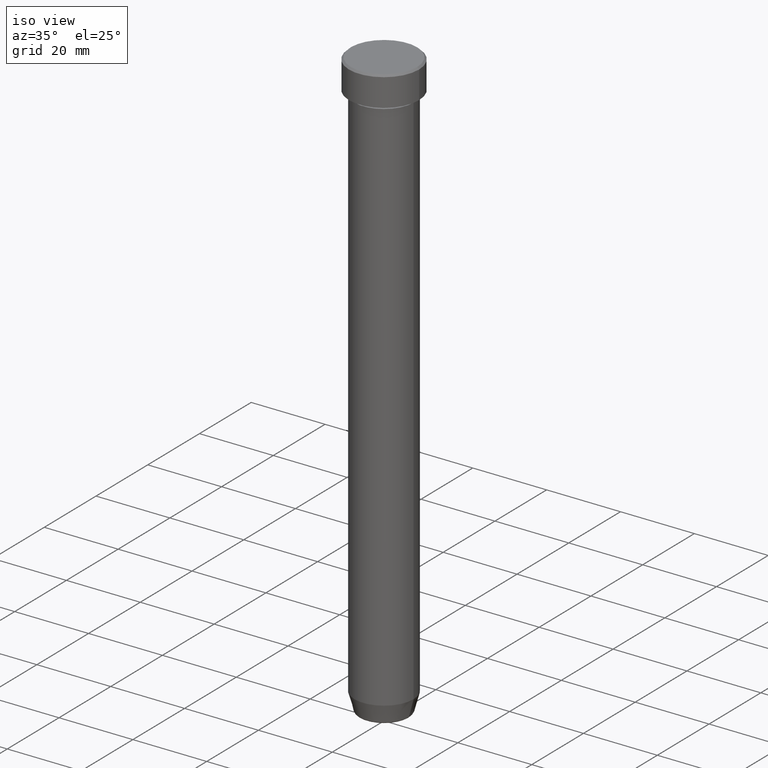
[diagram: clean part render]
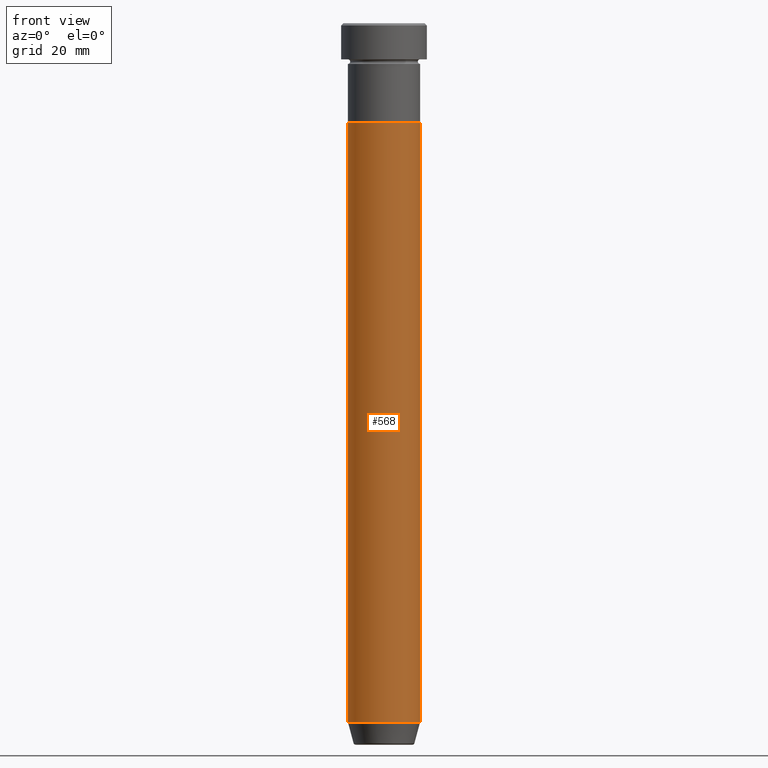
[diagram: tour spotlight — one face highlighted and labeled with its STEP entity id]
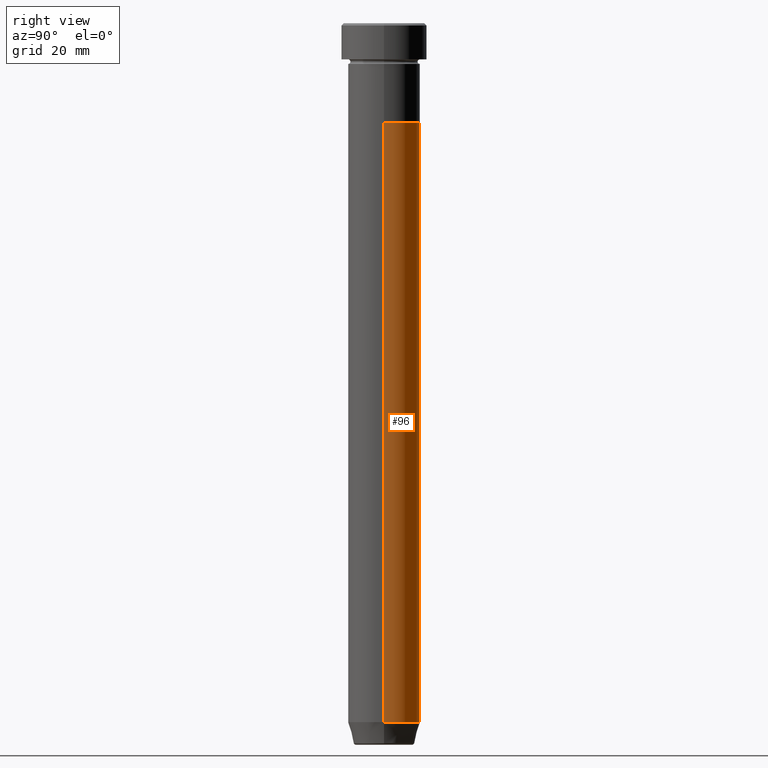
[diagram: tour spotlight — one face highlighted and labeled with its STEP entity id]
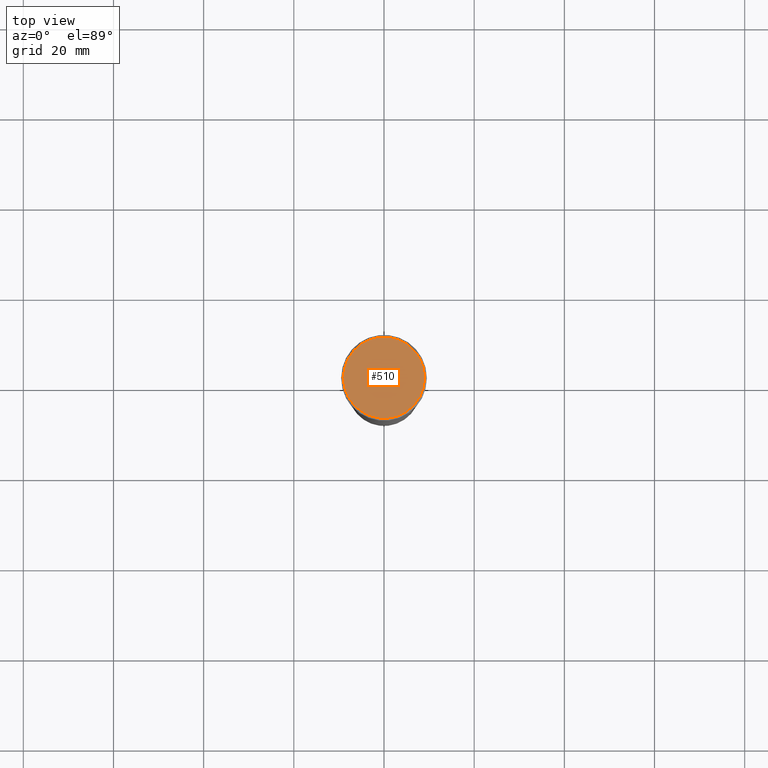
[diagram: tour spotlight — one face highlighted and labeled with its STEP entity id]
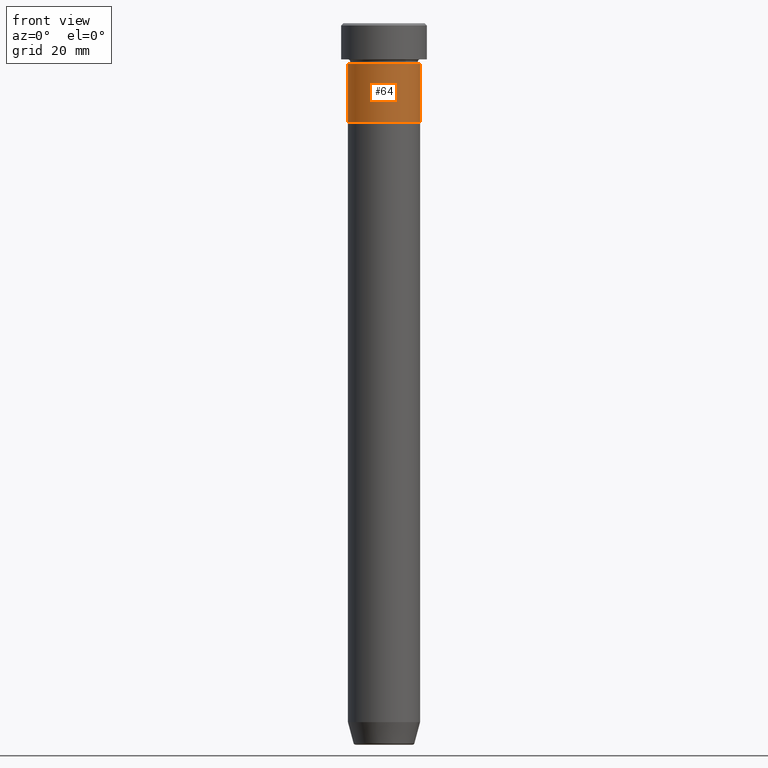
[diagram: tour spotlight — one face highlighted and labeled with its STEP entity id]
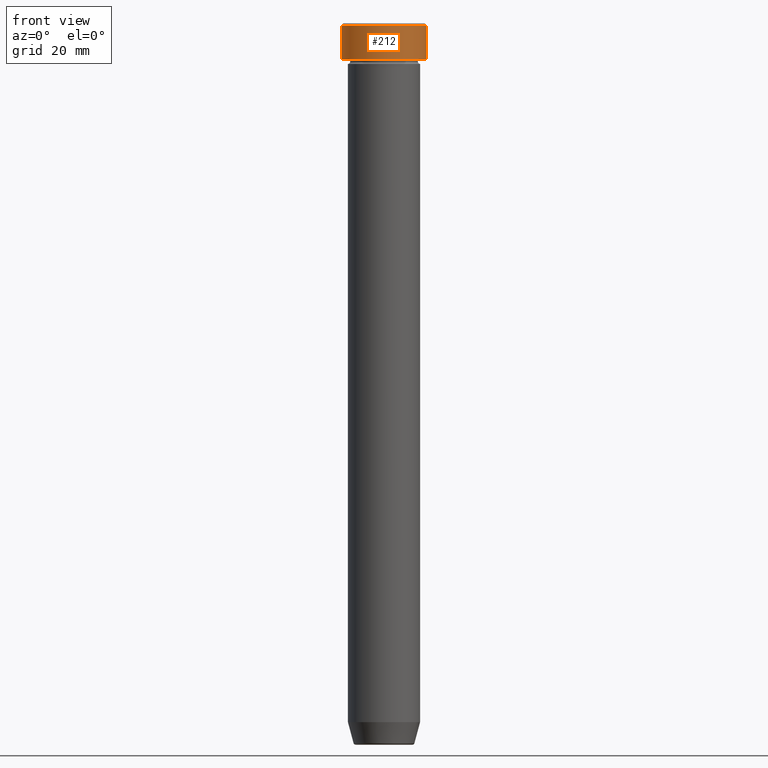
[diagram: tour spotlight — one face highlighted and labeled with its STEP entity id]
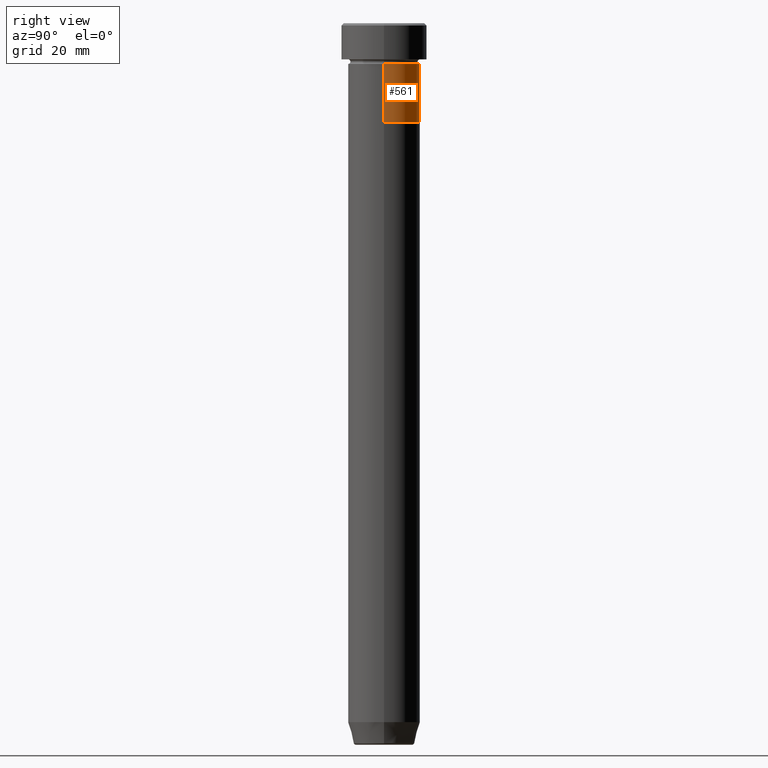
[diagram: tour spotlight — one face highlighted and labeled with its STEP entity id]
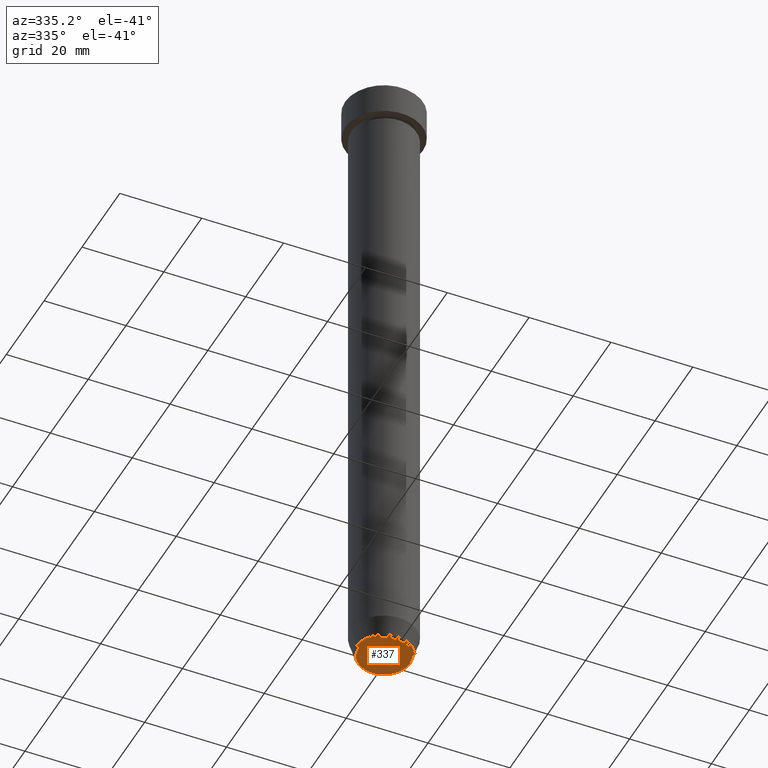
[diagram: tour spotlight — one face highlighted and labeled with its STEP entity id]
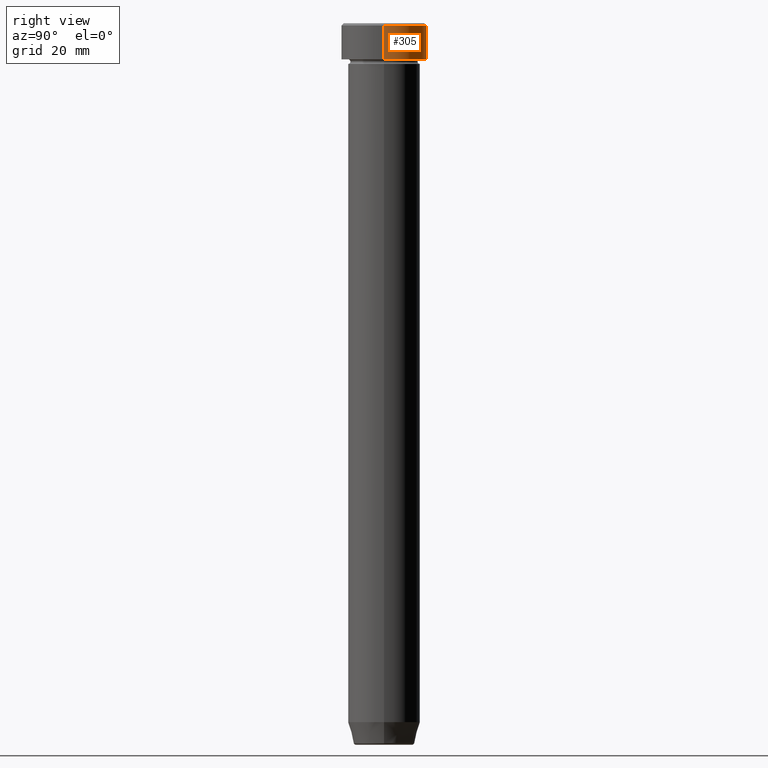
[diagram: tour spotlight — one face highlighted and labeled with its STEP entity id]
A machine part: a face-by-face anatomy tour. The part has 21 B-rep faces; the first image is the clean iso view, then the 8 largest visible faces are spotlighted one at a time (largest first), each with its STEP entity span.

Face 1 — front view, entity #568. In plain terms, the highlighted cylindrical surface (edge-blend (fillet) strip) has radius 8 mm, axis along (-0, -0, 1).
Definition (entity closure, byte-faithful):
#5 = CIRCLE ( 'NONE', #16, 8.000000000000000000 ) ;
#6 = CARTESIAN_POINT ( 'NONE',  ( 8.000000000000000000, 0.000000000000000000, -154.9999999999999716 ) ) ;
#16 = AXIS2_PLACEMENT_3D ( 'NONE', #333, #470, #521 ) ;
#20 = EDGE_LOOP ( 'NONE', ( #427, #463, #328, #460 ) ) ;
#22 = EDGE_CURVE ( 'NONE', #556, #249, #5, .T. ) ;
#30 = CARTESIAN_POINT ( 'NONE',  ( -8.000000000000000000, 9.797174393178825657E-16, -22.00000000000000000 ) ) ;
#39 = LINE ( 'NONE', #418, #196 ) ;
#47 = EDGE_CURVE ( 'NONE', #136, #269, #415, .T. ) ;
#54 = AXIS2_PLACEMENT_3D ( 'NONE', #262, #225, #343 ) ;
#73 = CARTESIAN_POINT ( 'NONE',  ( -8.000000000000000000, 9.797174393178825657E-16, 0.000000000000000000 ) ) ;
#89 = VECTOR ( 'NONE', #252, 1000.000000000000000 ) ;
#105 = CARTESIAN_POINT ( 'NONE',  ( -8.000000000000000000, 9.797174393178825657E-16, -154.9999999999999716 ) ) ;
#136 = VERTEX_POINT ( 'NONE', #30 ) ;
#196 = VECTOR ( 'NONE', #218, 1000.000000000000000 ) ;
#218 = DIRECTION ( 'NONE',  ( -0.000000000000000000, -0.000000000000000000, 1.000000000000000000 ) ) ;
#219 = EDGE_CURVE ( 'NONE', #556, #136, #485, .T. ) ;
#225 = DIRECTION ( 'NONE',  ( -0.000000000000000000, -0.000000000000000000, 1.000000000000000000 ) ) ;
#249 = VERTEX_POINT ( 'NONE', #6 ) ;
#252 = DIRECTION ( 'NONE',  ( -0.000000000000000000, -0.000000000000000000, 1.000000000000000000 ) ) ;
#262 = CARTESIAN_POINT ( 'NONE',  ( 0.000000000000000000, 0.000000000000000000, 0.000000000000000000 ) ) ;
#269 = VERTEX_POINT ( 'NONE', #511 ) ;
#311 = FACE_OUTER_BOUND ( 'NONE', #20, .T. ) ;
#328 = ORIENTED_EDGE ( 'NONE', *, *, #346, .T. ) ;
#333 = CARTESIAN_POINT ( 'NONE',  ( 0.000000000000000000, 0.000000000000000000, -154.9999999999999716 ) ) ;
#343 = DIRECTION ( 'NONE',  ( 1.000000000000000000, 0.000000000000000000, 0.000000000000000000 ) ) ;
#346 = EDGE_CURVE ( 'NONE', #249, #269, #39, .T. ) ;
#388 = DIRECTION ( 'NONE',  ( 1.000000000000000000, 0.000000000000000000, 0.000000000000000000 ) ) ;
#415 = CIRCLE ( 'NONE', #489, 8.000000000000000000 ) ;
#418 = CARTESIAN_POINT ( 'NONE',  ( 8.000000000000000000, 0.000000000000000000, 0.000000000000000000 ) ) ;
#427 = ORIENTED_EDGE ( 'NONE', *, *, #219, .F. ) ;
#460 = ORIENTED_EDGE ( 'NONE', *, *, #47, .F. ) ;
#463 = ORIENTED_EDGE ( 'NONE', *, *, #22, .T. ) ;
#470 = DIRECTION ( 'NONE',  ( -0.000000000000000000, -0.000000000000000000, 1.000000000000000000 ) ) ;
#473 = DIRECTION ( 'NONE',  ( -0.000000000000000000, -0.000000000000000000, 1.000000000000000000 ) ) ;
#478 = CARTESIAN_POINT ( 'NONE',  ( 0.000000000000000000, 0.000000000000000000, -22.00000000000000000 ) ) ;
#485 = LINE ( 'NONE', #73, #89 ) ;
#489 = AXIS2_PLACEMENT_3D ( 'NONE', #478, #473, #388 ) ;
#511 = CARTESIAN_POINT ( 'NONE',  ( 8.000000000000000000, 0.000000000000000000, -22.00000000000000000 ) ) ;
#521 = DIRECTION ( 'NONE',  ( 1.000000000000000000, 0.000000000000000000, 0.000000000000000000 ) ) ;
#556 = VERTEX_POINT ( 'NONE', #105 ) ;
#568 = ADVANCED_FACE ( 'NONE', ( #311 ), #583, .T. ) ;
#583 = CYLINDRICAL_SURFACE ( 'NONE', #54, 8.000000000000000000 ) ;

Face 2 — right view, entity #96. In plain terms, the highlighted cylindrical surface (edge-blend (fillet) strip) has radius 8 mm, axis along (-0, -0, 1).
Definition (entity closure, byte-faithful):
#6 = CARTESIAN_POINT ( 'NONE',  ( 8.000000000000000000, 0.000000000000000000, -154.9999999999999716 ) ) ;
#24 = ORIENTED_EDGE ( 'NONE', *, *, #346, .F. ) ;
#30 = CARTESIAN_POINT ( 'NONE',  ( -8.000000000000000000, 9.797174393178825657E-16, -22.00000000000000000 ) ) ;
#39 = LINE ( 'NONE', #418, #196 ) ;
#50 = DIRECTION ( 'NONE',  ( 1.000000000000000000, 0.000000000000000000, 0.000000000000000000 ) ) ;
#70 = FACE_OUTER_BOUND ( 'NONE', #370, .T. ) ;
#73 = CARTESIAN_POINT ( 'NONE',  ( -8.000000000000000000, 9.797174393178825657E-16, 0.000000000000000000 ) ) ;
#77 = CARTESIAN_POINT ( 'NONE',  ( 0.000000000000000000, 0.000000000000000000, 0.000000000000000000 ) ) ;
#89 = VECTOR ( 'NONE', #252, 1000.000000000000000 ) ;
#91 = CARTESIAN_POINT ( 'NONE',  ( 0.000000000000000000, 0.000000000000000000, -22.00000000000000000 ) ) ;
#96 = ADVANCED_FACE ( 'NONE', ( #70 ), #254, .T. ) ;
#99 = AXIS2_PLACEMENT_3D ( 'NONE', #77, #295, #591 ) ;
#105 = CARTESIAN_POINT ( 'NONE',  ( -8.000000000000000000, 9.797174393178825657E-16, -154.9999999999999716 ) ) ;
#136 = VERTEX_POINT ( 'NONE', #30 ) ;
#138 = ORIENTED_EDGE ( 'NONE', *, *, #587, .T. ) ;
#157 = CARTESIAN_POINT ( 'NONE',  ( 0.000000000000000000, 0.000000000000000000, -154.9999999999999716 ) ) ;
#196 = VECTOR ( 'NONE', #218, 1000.000000000000000 ) ;
#217 = DIRECTION ( 'NONE',  ( 1.000000000000000000, 0.000000000000000000, 0.000000000000000000 ) ) ;
#218 = DIRECTION ( 'NONE',  ( -0.000000000000000000, -0.000000000000000000, 1.000000000000000000 ) ) ;
#219 = EDGE_CURVE ( 'NONE', #556, #136, #485, .T. ) ;
#249 = VERTEX_POINT ( 'NONE', #6 ) ;
#252 = DIRECTION ( 'NONE',  ( -0.000000000000000000, -0.000000000000000000, 1.000000000000000000 ) ) ;
#254 = CYLINDRICAL_SURFACE ( 'NONE', #99, 8.000000000000000000 ) ;
#269 = VERTEX_POINT ( 'NONE', #511 ) ;
#281 = EDGE_CURVE ( 'NONE', #269, #136, #358, .T. ) ;
#295 = DIRECTION ( 'NONE',  ( -0.000000000000000000, -0.000000000000000000, 1.000000000000000000 ) ) ;
#346 = EDGE_CURVE ( 'NONE', #249, #269, #39, .T. ) ;
#351 = CIRCLE ( 'NONE', #505, 8.000000000000000000 ) ;
#358 = CIRCLE ( 'NONE', #440, 8.000000000000000000 ) ;
#360 = ORIENTED_EDGE ( 'NONE', *, *, #219, .T. ) ;
#363 = ORIENTED_EDGE ( 'NONE', *, *, #281, .F. ) ;
#370 = EDGE_LOOP ( 'NONE', ( #138, #360, #363, #24 ) ) ;
#373 = DIRECTION ( 'NONE',  ( -0.000000000000000000, -0.000000000000000000, 1.000000000000000000 ) ) ;
#418 = CARTESIAN_POINT ( 'NONE',  ( 8.000000000000000000, 0.000000000000000000, 0.000000000000000000 ) ) ;
#440 = AXIS2_PLACEMENT_3D ( 'NONE', #91, #373, #50 ) ;
#485 = LINE ( 'NONE', #73, #89 ) ;
#505 = AXIS2_PLACEMENT_3D ( 'NONE', #157, #594, #217 ) ;
#511 = CARTESIAN_POINT ( 'NONE',  ( 8.000000000000000000, 0.000000000000000000, -22.00000000000000000 ) ) ;
#556 = VERTEX_POINT ( 'NONE', #105 ) ;
#587 = EDGE_CURVE ( 'NONE', #249, #556, #351, .T. ) ;
#591 = DIRECTION ( 'NONE',  ( 1.000000000000000000, 0.000000000000000000, 0.000000000000000000 ) ) ;
#594 = DIRECTION ( 'NONE',  ( -0.000000000000000000, -0.000000000000000000, 1.000000000000000000 ) ) ;

Face 3 — top view, entity #510. In plain terms, the highlighted planar face has unit normal (0, -0, 1).
Definition (entity closure, byte-faithful):
#51 = EDGE_LOOP ( 'NONE', ( #131, #341 ) ) ;
#52 = EDGE_CURVE ( 'NONE', #532, #87, #303, .T. ) ;
#57 = DIRECTION ( 'NONE',  ( 1.000000000000000000, 0.000000000000000000, 0.000000000000000000 ) ) ;
#58 = FACE_OUTER_BOUND ( 'NONE', #51, .T. ) ;
#87 = VERTEX_POINT ( 'NONE', #344 ) ;
#131 = ORIENTED_EDGE ( 'NONE', *, *, #52, .T. ) ;
#189 = PLANE ( 'NONE',  #280 ) ;
#240 = EDGE_CURVE ( 'NONE', #87, #532, #268, .T. ) ;
#246 = DIRECTION ( 'NONE',  ( -0.000000000000000000, -0.000000000000000000, 1.000000000000000000 ) ) ;
#268 = CIRCLE ( 'NONE', #279, 9.000000000000001776 ) ;
#271 = DIRECTION ( 'NONE',  ( 1.000000000000000000, 0.000000000000000000, 0.000000000000000000 ) ) ;
#279 = AXIS2_PLACEMENT_3D ( 'NONE', #498, #459, #271 ) ;
#280 = AXIS2_PLACEMENT_3D ( 'NONE', #569, #376, #565 ) ;
#303 = CIRCLE ( 'NONE', #322, 9.000000000000001776 ) ;
#322 = AXIS2_PLACEMENT_3D ( 'NONE', #331, #246, #57 ) ;
#331 = CARTESIAN_POINT ( 'NONE',  ( 0.000000000000000000, 0.000000000000000000, 0.000000000000000000 ) ) ;
#341 = ORIENTED_EDGE ( 'NONE', *, *, #240, .T. ) ;
#344 = CARTESIAN_POINT ( 'NONE',  ( 9.000000000000001776, 1.132798289211301698E-15, 0.000000000000000000 ) ) ;
#376 = DIRECTION ( 'NONE',  ( 0.000000000000000000, -0.000000000000000000, 1.000000000000000000 ) ) ;
#459 = DIRECTION ( 'NONE',  ( -0.000000000000000000, -0.000000000000000000, 1.000000000000000000 ) ) ;
#498 = CARTESIAN_POINT ( 'NONE',  ( 0.000000000000000000, 0.000000000000000000, 0.000000000000000000 ) ) ;
#510 = ADVANCED_FACE ( 'NONE', ( #58 ), #189, .T. ) ;
#513 = CARTESIAN_POINT ( 'NONE',  ( -9.000000000000001776, 0.000000000000000000, 0.000000000000000000 ) ) ;
#532 = VERTEX_POINT ( 'NONE', #513 ) ;
#565 = DIRECTION ( 'NONE',  ( 1.000000000000000000, 0.000000000000000000, 0.000000000000000000 ) ) ;
#569 = CARTESIAN_POINT ( 'NONE',  ( 0.000000000000000000, 0.000000000000000000, 0.000000000000000000 ) ) ;

Face 4 — front view, entity #64. In plain terms, the highlighted cylindrical surface (edge-blend (fillet) strip) has radius 8 mm, axis along (-0, -0, 1).
Definition (entity closure, byte-faithful):
#2 = EDGE_LOOP ( 'NONE', ( #141, #338, #187, #227 ) ) ;
#26 = LINE ( 'NONE', #117, #595 ) ;
#31 = EDGE_CURVE ( 'NONE', #453, #572, #150, .T. ) ;
#59 = FACE_OUTER_BOUND ( 'NONE', #2, .T. ) ;
#64 = ADVANCED_FACE ( 'NONE', ( #59 ), #107, .T. ) ;
#83 = AXIS2_PLACEMENT_3D ( 'NONE', #243, #207, #482 ) ;
#107 = CYLINDRICAL_SURFACE ( 'NONE', #83, 8.000000000000000000 ) ;
#117 = CARTESIAN_POINT ( 'NONE',  ( -8.000000000000000000, 9.797174393178825657E-16, 0.000000000000000000 ) ) ;
#141 = ORIENTED_EDGE ( 'NONE', *, *, #203, .F. ) ;
#142 = VECTOR ( 'NONE', #162, 1000.000000000000000 ) ;
#145 = CARTESIAN_POINT ( 'NONE',  ( 0.000000000000000000, 0.000000000000000000, -22.00000000000000000 ) ) ;
#150 = CIRCLE ( 'NONE', #335, 8.000000000000000000 ) ;
#152 = DIRECTION ( 'NONE',  ( 1.000000000000000000, 0.000000000000000000, 0.000000000000000000 ) ) ;
#162 = DIRECTION ( 'NONE',  ( -0.000000000000000000, -0.000000000000000000, 1.000000000000000000 ) ) ;
#170 = VERTEX_POINT ( 'NONE', #304 ) ;
#184 = AXIS2_PLACEMENT_3D ( 'NONE', #559, #362, #274 ) ;
#187 = ORIENTED_EDGE ( 'NONE', *, *, #231, .T. ) ;
#193 = CARTESIAN_POINT ( 'NONE',  ( -8.000000000000000000, 9.797174393178825657E-16, -22.00000000000000000 ) ) ;
#203 = EDGE_CURVE ( 'NONE', #453, #468, #26, .T. ) ;
#207 = DIRECTION ( 'NONE',  ( -0.000000000000000000, -0.000000000000000000, 1.000000000000000000 ) ) ;
#214 = CIRCLE ( 'NONE', #184, 8.000000000000000000 ) ;
#227 = ORIENTED_EDGE ( 'NONE', *, *, #374, .F. ) ;
#231 = EDGE_CURVE ( 'NONE', #572, #170, #395, .T. ) ;
#241 = DIRECTION ( 'NONE',  ( -0.000000000000000000, -0.000000000000000000, 1.000000000000000000 ) ) ;
#243 = CARTESIAN_POINT ( 'NONE',  ( 0.000000000000000000, 0.000000000000000000, 0.000000000000000000 ) ) ;
#274 = DIRECTION ( 'NONE',  ( 1.000000000000000000, 0.000000000000000000, 0.000000000000000000 ) ) ;
#285 = CARTESIAN_POINT ( 'NONE',  ( -8.000000000000000000, 9.797174393178825657E-16, -9.000000000000001776 ) ) ;
#304 = CARTESIAN_POINT ( 'NONE',  ( 8.000000000000000000, 0.000000000000000000, -9.000000000000001776 ) ) ;
#335 = AXIS2_PLACEMENT_3D ( 'NONE', #145, #241, #152 ) ;
#338 = ORIENTED_EDGE ( 'NONE', *, *, #31, .T. ) ;
#362 = DIRECTION ( 'NONE',  ( -0.000000000000000000, -0.000000000000000000, 1.000000000000000000 ) ) ;
#374 = EDGE_CURVE ( 'NONE', #468, #170, #214, .T. ) ;
#395 = LINE ( 'NONE', #588, #142 ) ;
#453 = VERTEX_POINT ( 'NONE', #193 ) ;
#468 = VERTEX_POINT ( 'NONE', #285 ) ;
#482 = DIRECTION ( 'NONE',  ( 1.000000000000000000, 0.000000000000000000, 0.000000000000000000 ) ) ;
#500 = CARTESIAN_POINT ( 'NONE',  ( 8.000000000000000000, 0.000000000000000000, -22.00000000000000000 ) ) ;
#559 = CARTESIAN_POINT ( 'NONE',  ( 0.000000000000000000, 0.000000000000000000, -9.000000000000001776 ) ) ;
#572 = VERTEX_POINT ( 'NONE', #500 ) ;
#584 = DIRECTION ( 'NONE',  ( -0.000000000000000000, -0.000000000000000000, 1.000000000000000000 ) ) ;
#588 = CARTESIAN_POINT ( 'NONE',  ( 8.000000000000000000, 0.000000000000000000, 0.000000000000000000 ) ) ;
#595 = VECTOR ( 'NONE', #584, 1000.000000000000000 ) ;

Face 5 — front view, entity #212. In plain terms, the highlighted cylindrical surface (partial cylindrical patch) has radius 9.5 mm, axis along (-0, -0, 1).
Definition (entity closure, byte-faithful):
#10 = LINE ( 'NONE', #169, #27 ) ;
#21 = ORIENTED_EDGE ( 'NONE', *, *, #273, .T. ) ;
#27 = VECTOR ( 'NONE', #323, 1000.000000000000000 ) ;
#28 = CIRCLE ( 'NONE', #270, 9.500000000000000000 ) ;
#36 = EDGE_CURVE ( 'NONE', #402, #475, #247, .T. ) ;
#37 = CARTESIAN_POINT ( 'NONE',  ( 0.000000000000000000, 0.000000000000000000, -8.000000000000000000 ) ) ;
#42 = DIRECTION ( 'NONE',  ( 1.000000000000000000, 0.000000000000000000, 0.000000000000000000 ) ) ;
#76 = VECTOR ( 'NONE', #434, 1000.000000000000000 ) ;
#115 = DIRECTION ( 'NONE',  ( -0.000000000000000000, -0.000000000000000000, 1.000000000000000000 ) ) ;
#161 = FACE_OUTER_BOUND ( 'NONE', #512, .T. ) ;
#169 = CARTESIAN_POINT ( 'NONE',  ( 9.500000000000000000, 0.000000000000000000, 0.000000000000000000 ) ) ;
#171 = AXIS2_PLACEMENT_3D ( 'NONE', #37, #592, #355 ) ;
#178 = CARTESIAN_POINT ( 'NONE',  ( 9.500000000000000000, 0.000000000000000000, -0.4999999999999968914 ) ) ;
#186 = EDGE_CURVE ( 'NONE', #402, #377, #206, .T. ) ;
#206 = CIRCLE ( 'NONE', #171, 9.500000000000000000 ) ;
#212 = ADVANCED_FACE ( 'NONE', ( #161 ), #348, .T. ) ;
#247 = LINE ( 'NONE', #430, #76 ) ;
#270 = AXIS2_PLACEMENT_3D ( 'NONE', #390, #533, #42 ) ;
#272 = ORIENTED_EDGE ( 'NONE', *, *, #186, .T. ) ;
#273 = EDGE_CURVE ( 'NONE', #377, #353, #10, .T. ) ;
#299 = DIRECTION ( 'NONE',  ( 1.000000000000000000, 0.000000000000000000, 0.000000000000000000 ) ) ;
#310 = ORIENTED_EDGE ( 'NONE', *, *, #578, .T. ) ;
#323 = DIRECTION ( 'NONE',  ( -0.000000000000000000, -0.000000000000000000, 1.000000000000000000 ) ) ;
#348 = CYLINDRICAL_SURFACE ( 'NONE', #380, 9.500000000000000000 ) ;
#353 = VERTEX_POINT ( 'NONE', #178 ) ;
#355 = DIRECTION ( 'NONE',  ( 1.000000000000000000, 0.000000000000000000, 0.000000000000000000 ) ) ;
#377 = VERTEX_POINT ( 'NONE', #405 ) ;
#380 = AXIS2_PLACEMENT_3D ( 'NONE', #534, #115, #299 ) ;
#390 = CARTESIAN_POINT ( 'NONE',  ( 0.000000000000000000, 0.000000000000000000, -0.4999999999999968914 ) ) ;
#402 = VERTEX_POINT ( 'NONE', #597 ) ;
#405 = CARTESIAN_POINT ( 'NONE',  ( 9.500000000000000000, 0.000000000000000000, -8.000000000000000000 ) ) ;
#430 = CARTESIAN_POINT ( 'NONE',  ( -9.500000000000000000, 1.163414459189985485E-15, 0.000000000000000000 ) ) ;
#434 = DIRECTION ( 'NONE',  ( -0.000000000000000000, -0.000000000000000000, 1.000000000000000000 ) ) ;
#474 = CARTESIAN_POINT ( 'NONE',  ( -9.500000000000000000, 1.163414459189985485E-15, -0.4999999999999968914 ) ) ;
#475 = VERTEX_POINT ( 'NONE', #474 ) ;
#512 = EDGE_LOOP ( 'NONE', ( #564, #272, #21, #310 ) ) ;
#533 = DIRECTION ( 'NONE',  ( 0.000000000000000000, 0.000000000000000000, -1.000000000000000000 ) ) ;
#534 = CARTESIAN_POINT ( 'NONE',  ( 0.000000000000000000, 0.000000000000000000, 0.000000000000000000 ) ) ;
#564 = ORIENTED_EDGE ( 'NONE', *, *, #36, .F. ) ;
#578 = EDGE_CURVE ( 'NONE', #353, #475, #28, .T. ) ;
#592 = DIRECTION ( 'NONE',  ( -0.000000000000000000, -0.000000000000000000, 1.000000000000000000 ) ) ;
#597 = CARTESIAN_POINT ( 'NONE',  ( -9.500000000000000000, 1.163414459189985485E-15, -8.000000000000000000 ) ) ;

Face 6 — right view, entity #561. In plain terms, the highlighted cylindrical surface (edge-blend (fillet) strip) has radius 8 mm, axis along (-0, -0, 1).
Definition (entity closure, byte-faithful):
#26 = LINE ( 'NONE', #117, #595 ) ;
#117 = CARTESIAN_POINT ( 'NONE',  ( -8.000000000000000000, 9.797174393178825657E-16, 0.000000000000000000 ) ) ;
#124 = CYLINDRICAL_SURFACE ( 'NONE', #297, 8.000000000000000000 ) ;
#142 = VECTOR ( 'NONE', #162, 1000.000000000000000 ) ;
#151 = DIRECTION ( 'NONE',  ( -0.000000000000000000, -0.000000000000000000, 1.000000000000000000 ) ) ;
#156 = EDGE_CURVE ( 'NONE', #572, #453, #467, .T. ) ;
#162 = DIRECTION ( 'NONE',  ( -0.000000000000000000, -0.000000000000000000, 1.000000000000000000 ) ) ;
#170 = VERTEX_POINT ( 'NONE', #304 ) ;
#174 = DIRECTION ( 'NONE',  ( -0.000000000000000000, -0.000000000000000000, 1.000000000000000000 ) ) ;
#193 = CARTESIAN_POINT ( 'NONE',  ( -8.000000000000000000, 9.797174393178825657E-16, -22.00000000000000000 ) ) ;
#201 = ORIENTED_EDGE ( 'NONE', *, *, #156, .T. ) ;
#203 = EDGE_CURVE ( 'NONE', #453, #468, #26, .T. ) ;
#210 = CARTESIAN_POINT ( 'NONE',  ( 0.000000000000000000, 0.000000000000000000, -22.00000000000000000 ) ) ;
#216 = DIRECTION ( 'NONE',  ( 1.000000000000000000, 0.000000000000000000, 0.000000000000000000 ) ) ;
#231 = EDGE_CURVE ( 'NONE', #572, #170, #395, .T. ) ;
#238 = ORIENTED_EDGE ( 'NONE', *, *, #231, .F. ) ;
#250 = AXIS2_PLACEMENT_3D ( 'NONE', #422, #151, #378 ) ;
#257 = CIRCLE ( 'NONE', #250, 8.000000000000000000 ) ;
#285 = CARTESIAN_POINT ( 'NONE',  ( -8.000000000000000000, 9.797174393178825657E-16, -9.000000000000001776 ) ) ;
#297 = AXIS2_PLACEMENT_3D ( 'NONE', #544, #174, #454 ) ;
#304 = CARTESIAN_POINT ( 'NONE',  ( 8.000000000000000000, 0.000000000000000000, -9.000000000000001776 ) ) ;
#313 = EDGE_LOOP ( 'NONE', ( #201, #317, #481, #238 ) ) ;
#317 = ORIENTED_EDGE ( 'NONE', *, *, #203, .T. ) ;
#352 = DIRECTION ( 'NONE',  ( -0.000000000000000000, -0.000000000000000000, 1.000000000000000000 ) ) ;
#378 = DIRECTION ( 'NONE',  ( 1.000000000000000000, 0.000000000000000000, 0.000000000000000000 ) ) ;
#395 = LINE ( 'NONE', #588, #142 ) ;
#422 = CARTESIAN_POINT ( 'NONE',  ( 0.000000000000000000, 0.000000000000000000, -9.000000000000001776 ) ) ;
#453 = VERTEX_POINT ( 'NONE', #193 ) ;
#454 = DIRECTION ( 'NONE',  ( 1.000000000000000000, 0.000000000000000000, 0.000000000000000000 ) ) ;
#467 = CIRCLE ( 'NONE', #514, 8.000000000000000000 ) ;
#468 = VERTEX_POINT ( 'NONE', #285 ) ;
#481 = ORIENTED_EDGE ( 'NONE', *, *, #488, .F. ) ;
#488 = EDGE_CURVE ( 'NONE', #170, #468, #257, .T. ) ;
#500 = CARTESIAN_POINT ( 'NONE',  ( 8.000000000000000000, 0.000000000000000000, -22.00000000000000000 ) ) ;
#514 = AXIS2_PLACEMENT_3D ( 'NONE', #210, #352, #216 ) ;
#520 = FACE_OUTER_BOUND ( 'NONE', #313, .T. ) ;
#544 = CARTESIAN_POINT ( 'NONE',  ( 0.000000000000000000, 0.000000000000000000, 0.000000000000000000 ) ) ;
#561 = ADVANCED_FACE ( 'NONE', ( #520 ), #124, .T. ) ;
#572 = VERTEX_POINT ( 'NONE', #500 ) ;
#584 = DIRECTION ( 'NONE',  ( -0.000000000000000000, -0.000000000000000000, 1.000000000000000000 ) ) ;
#588 = CARTESIAN_POINT ( 'NONE',  ( 8.000000000000000000, 0.000000000000000000, 0.000000000000000000 ) ) ;
#595 = VECTOR ( 'NONE', #584, 1000.000000000000000 ) ;

Face 7 — auxiliary view, entity #337. In plain terms, the highlighted planar face has unit normal (0, -0, 1).
Definition (entity closure, byte-faithful):
#1 = DIRECTION ( 'NONE',  ( 0.000000000000000000, -0.000000000000000000, 1.000000000000000000 ) ) ;
#4 = EDGE_CURVE ( 'NONE', #552, #230, #265, .T. ) ;
#18 = DIRECTION ( 'NONE',  ( 1.000000000000000000, 0.000000000000000000, 0.000000000000000000 ) ) ;
#32 = CARTESIAN_POINT ( 'NONE',  ( 6.276590543854900339, 0.000000000000000000, -160.0000000000000000 ) ) ;
#135 = DIRECTION ( 'NONE',  ( 1.000000000000000000, 0.000000000000000000, 0.000000000000000000 ) ) ;
#137 = FACE_OUTER_BOUND ( 'NONE', #579, .T. ) ;
#147 = CARTESIAN_POINT ( 'NONE',  ( -6.276590543854900339, 7.982336011935118383E-16, -160.0000000000000000 ) ) ;
#176 = ORIENTED_EDGE ( 'NONE', *, *, #4, .T. ) ;
#192 = AXIS2_PLACEMENT_3D ( 'NONE', #286, #515, #18 ) ;
#200 = DIRECTION ( 'NONE',  ( 0.000000000000000000, 0.000000000000000000, -1.000000000000000000 ) ) ;
#211 = ORIENTED_EDGE ( 'NONE', *, *, #432, .T. ) ;
#230 = VERTEX_POINT ( 'NONE', #32 ) ;
#265 = CIRCLE ( 'NONE', #192, 6.276590543854900339 ) ;
#286 = CARTESIAN_POINT ( 'NONE',  ( 0.000000000000000000, 0.000000000000000000, -160.0000000000000000 ) ) ;
#289 = CIRCLE ( 'NONE', #525, 6.276590543854900339 ) ;
#309 = CARTESIAN_POINT ( 'NONE',  ( 0.000000000000000000, 1.347111479062088839E-14, -160.0000000000000000 ) ) ;
#337 = ADVANCED_FACE ( 'NONE', ( #137 ), #449, .F. ) ;
#385 = DIRECTION ( 'NONE',  ( 1.000000000000000000, 0.000000000000000000, 0.000000000000000000 ) ) ;
#432 = EDGE_CURVE ( 'NONE', #230, #552, #289, .T. ) ;
#449 = PLANE ( 'NONE',  #455 ) ;
#455 = AXIS2_PLACEMENT_3D ( 'NONE', #309, #1, #135 ) ;
#515 = DIRECTION ( 'NONE',  ( 0.000000000000000000, 0.000000000000000000, -1.000000000000000000 ) ) ;
#518 = CARTESIAN_POINT ( 'NONE',  ( 0.000000000000000000, 0.000000000000000000, -160.0000000000000000 ) ) ;
#525 = AXIS2_PLACEMENT_3D ( 'NONE', #518, #200, #385 ) ;
#552 = VERTEX_POINT ( 'NONE', #147 ) ;
#579 = EDGE_LOOP ( 'NONE', ( #211, #176 ) ) ;

Face 8 — right view, entity #305. In plain terms, the highlighted cylindrical surface (partial cylindrical patch) has radius 9.5 mm, axis along (-0, -0, 1).
Definition (entity closure, byte-faithful):
#9 = AXIS2_PLACEMENT_3D ( 'NONE', #166, #439, #487 ) ;
#10 = LINE ( 'NONE', #169, #27 ) ;
#27 = VECTOR ( 'NONE', #323, 1000.000000000000000 ) ;
#36 = EDGE_CURVE ( 'NONE', #402, #475, #247, .T. ) ;
#43 = CIRCLE ( 'NONE', #545, 9.500000000000000000 ) ;
#76 = VECTOR ( 'NONE', #434, 1000.000000000000000 ) ;
#79 = EDGE_CURVE ( 'NONE', #377, #402, #334, .T. ) ;
#85 = DIRECTION ( 'NONE',  ( 1.000000000000000000, 0.000000000000000000, 0.000000000000000000 ) ) ;
#166 = CARTESIAN_POINT ( 'NONE',  ( 0.000000000000000000, 0.000000000000000000, -8.000000000000000000 ) ) ;
#169 = CARTESIAN_POINT ( 'NONE',  ( 9.500000000000000000, 0.000000000000000000, 0.000000000000000000 ) ) ;
#172 = EDGE_CURVE ( 'NONE', #475, #353, #43, .T. ) ;
#178 = CARTESIAN_POINT ( 'NONE',  ( 9.500000000000000000, 0.000000000000000000, -0.4999999999999968914 ) ) ;
#179 = EDGE_LOOP ( 'NONE', ( #199, #419, #349, #424 ) ) ;
#199 = ORIENTED_EDGE ( 'NONE', *, *, #79, .T. ) ;
#222 = AXIS2_PLACEMENT_3D ( 'NONE', #264, #501, #85 ) ;
#247 = LINE ( 'NONE', #430, #76 ) ;
#255 = DIRECTION ( 'NONE',  ( 0.000000000000000000, 0.000000000000000000, -1.000000000000000000 ) ) ;
#264 = CARTESIAN_POINT ( 'NONE',  ( 0.000000000000000000, 0.000000000000000000, 0.000000000000000000 ) ) ;
#273 = EDGE_CURVE ( 'NONE', #377, #353, #10, .T. ) ;
#305 = ADVANCED_FACE ( 'NONE', ( #563 ), #366, .T. ) ;
#323 = DIRECTION ( 'NONE',  ( -0.000000000000000000, -0.000000000000000000, 1.000000000000000000 ) ) ;
#334 = CIRCLE ( 'NONE', #9, 9.500000000000000000 ) ;
#349 = ORIENTED_EDGE ( 'NONE', *, *, #172, .T. ) ;
#353 = VERTEX_POINT ( 'NONE', #178 ) ;
#366 = CYLINDRICAL_SURFACE ( 'NONE', #222, 9.500000000000000000 ) ;
#377 = VERTEX_POINT ( 'NONE', #405 ) ;
#402 = VERTEX_POINT ( 'NONE', #597 ) ;
#405 = CARTESIAN_POINT ( 'NONE',  ( 9.500000000000000000, 0.000000000000000000, -8.000000000000000000 ) ) ;
#419 = ORIENTED_EDGE ( 'NONE', *, *, #36, .T. ) ;
#424 = ORIENTED_EDGE ( 'NONE', *, *, #273, .F. ) ;
#430 = CARTESIAN_POINT ( 'NONE',  ( -9.500000000000000000, 1.163414459189985485E-15, 0.000000000000000000 ) ) ;
#434 = DIRECTION ( 'NONE',  ( -0.000000000000000000, -0.000000000000000000, 1.000000000000000000 ) ) ;
#439 = DIRECTION ( 'NONE',  ( -0.000000000000000000, -0.000000000000000000, 1.000000000000000000 ) ) ;
#447 = DIRECTION ( 'NONE',  ( 1.000000000000000000, 0.000000000000000000, 0.000000000000000000 ) ) ;
#474 = CARTESIAN_POINT ( 'NONE',  ( -9.500000000000000000, 1.163414459189985485E-15, -0.4999999999999968914 ) ) ;
#475 = VERTEX_POINT ( 'NONE', #474 ) ;
#487 = DIRECTION ( 'NONE',  ( 1.000000000000000000, 0.000000000000000000, 0.000000000000000000 ) ) ;
#490 = CARTESIAN_POINT ( 'NONE',  ( 0.000000000000000000, 0.000000000000000000, -0.4999999999999968914 ) ) ;
#501 = DIRECTION ( 'NONE',  ( -0.000000000000000000, -0.000000000000000000, 1.000000000000000000 ) ) ;
#545 = AXIS2_PLACEMENT_3D ( 'NONE', #490, #255, #447 ) ;
#563 = FACE_OUTER_BOUND ( 'NONE', #179, .T. ) ;
#597 = CARTESIAN_POINT ( 'NONE',  ( -9.500000000000000000, 1.163414459189985485E-15, -8.000000000000000000 ) ) ;